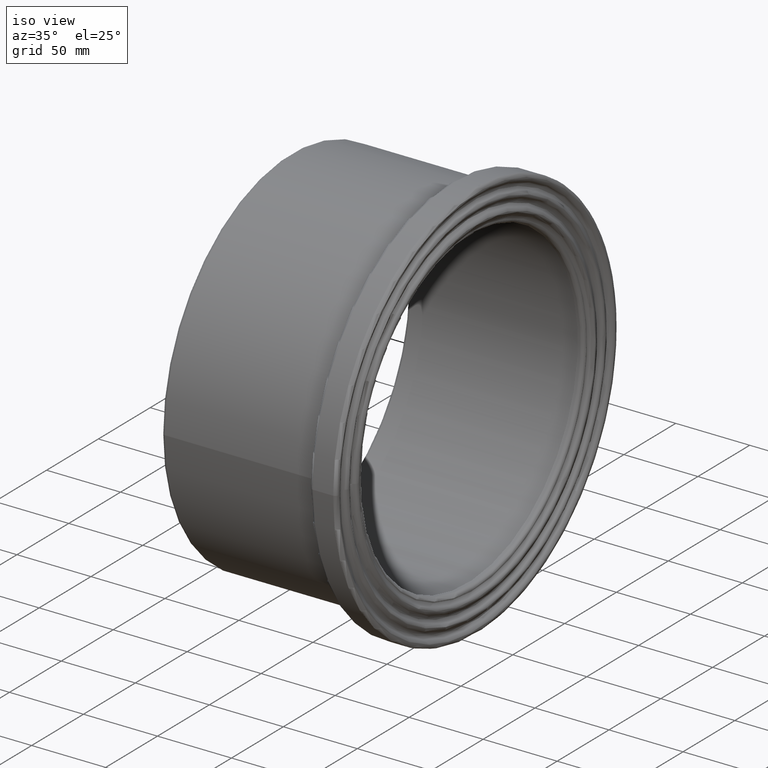
[diagram: clean part render]
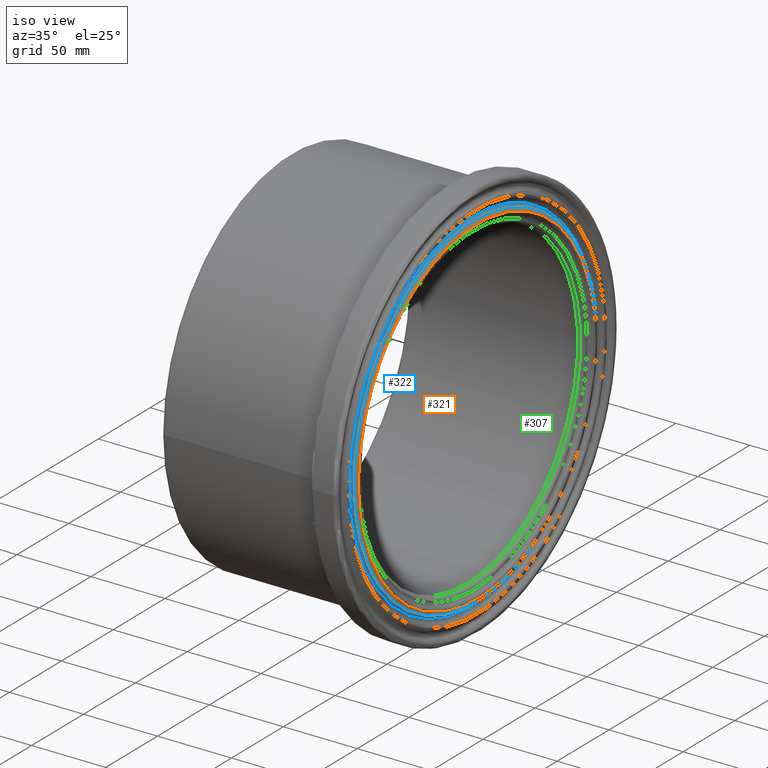
[diagram: same view with three faces highlighted in distinct colors, each labeled with its STEP entity id]
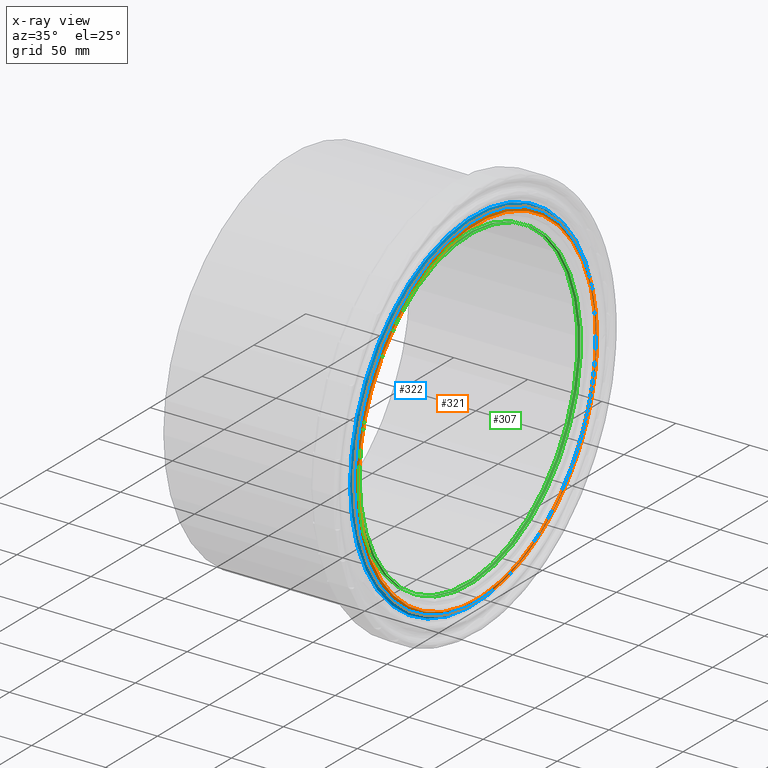
[diagram: x-ray of the same camera — body ghosted, the three highlighted faces saturated]
A machine part, iso view with three faces highlighted in distinct colors.
The next image is the same camera in x-ray (body ghosted, the three faces saturated) — at least one of them is partly hidden behind the body in this view.
Their STEP definitions:

[orange] entity #321 — the highlighted face is a freeform B-spline surface patch.
#18=B_SPLINE_SURFACE_WITH_KNOTS('',3,3,((#1747,#1748,#1749,#1750,#1751,
#1752,#1753,#1754,#1755,#1756,#1757,#1758,#1759,#1760,#1761,#1762,#1763,
#1764,#1765,#1766,#1767,#1768,#1769,#1770,#1771,#1772,#1773,#1774,#1775,
#1776,#1777,#1778,#1779,#1780,#1781,#1782,#1783,#1784,#1785,#1786,#1787,
#1788,#1789,#1790,#1791,#1792,#1793,#1794,#1795,#1796,#1797,#1798,#1799,
#1800,#1801),(#1802,#1803,#1804,#1805,#1806,#1807,#1808,#1809,#1810,#1811,
#1812,#1813,#1814,#1815,#1816,#1817,#1818,#1819,#1820,#1821,#1822,#1823,
#1824,#1825,#1826,#1827,#1828,#1829,#1830,#1831,#1832,#1833,#1834,#1835,
#1836,#1837,#1838,#1839,#1840,#1841,#1842,#1843,#1844,#1845,#1846,#1847,
#1848,#1849,#1850,#1851,#1852,#1853,#1854,#1855,#1856),(#1857,#1858,#1859,
#1860,#1861,#1862,#1863,#1864,#1865,#1866,#1867,#1868,#1869,#1870,#1871,
#1872,#1873,#1874,#1875,#1876,#1877,#1878,#1879,#1880,#1881,#1882,#1883,
#1884,#1885,#1886,#1887,#1888,#1889,#1890,#1891,#1892,#1893,#1894,#1895,
#1896,#1897,#1898,#1899,#1900,#1901,#1902,#1903,#1904,#1905,#1906,#1907,
#1908,#1909,#1910,#1911),(#1912,#1913,#1914,#1915,#1916,#1917,#1918,#1919,
#1920,#1921,#1922,#1923,#1924,#1925,#1926,#1927,#1928,#1929,#1930,#1931,
#1932,#1933,#1934,#1935,#1936,#1937,#1938,#1939,#1940,#1941,#1942,#1943,
#1944,#1945,#1946,#1947,#1948,#1949,#1950,#1951,#1952,#1953,#1954,#1955,
#1956,#1957,#1958,#1959,#1960,#1961,#1962,#1963,#1964,#1965,#1966),(#1967,
#1968,#1969,#1970,#1971,#1972,#1973,#1974,#1975,#1976,#1977,#1978,#1979,
#1980,#1981,#1982,#1983,#1984,#1985,#1986,#1987,#1988,#1989,#1990,#1991,
#1992,#1993,#1994,#1995,#1996,#1997,#1998,#1999,#2000,#2001,#2002,#2003,
#2004,#2005,#2006,#2007,#2008,#2009,#2010,#2011,#2012,#2013,#2014,#2015,
#2016,#2017,#2018,#2019,#2020,#2021)),.UNSPECIFIED.,.F.,.T.,.F.,(4,1,4),
(4,1,1,1,1,1,1,1,1,1,1,1,1,1,1,1,1,1,1,1,1,1,1,1,1,1,1,1,1,1,1,1,1,1,1,
1,1,1,1,1,1,1,1,1,1,1,1,1,1,1,1,1,4),(0.,0.571428571428571,1.),(35.8204599117917,
37.0997620514985,38.3790641912054,39.6583663309122,40.9376684706191,43.4962727500327,
44.7755748897396,46.0548770294464,48.3291919444808,49.466349401998,52.8778217745496,
53.7306898676875,54.5835579608254,56.2892941471012,57.995030333377,59.7007665196528,
61.4065027059286,63.1122388922044,64.8179750784802,66.523711264756,69.9351836373075,
72.0673538701523,72.4937879167212,73.3466560098591,75.0523921961349,76.7581283824107,
77.8242134988331,78.4638645686865,80.1696007549623,81.8753369412381,82.9414220576605,
83.5810731275139,85.2868093137897,86.9925455000655,88.2718476397723,89.5511497794792,
90.5106263842593,92.1097540588929,93.3890561985997,94.6683583383065,95.6278349430867,
96.5873115478668,97.2269626177202,98.5062647574271,98.9860030598172,99.7855668971339,
102.344171176548,102.663996711474,103.623473316254,104.902775455961,106.182077595668,
106.501903130595,107.461379735375),.UNSPECIFIED.);
#26=B_SPLINE_CURVE_WITH_KNOTS('',3,(#899,#900,#901,#902,#903,#904,#905,
#906,#907,#908,#909,#910,#911,#912,#913,#914,#915,#916,#917,#918,#919,#920,
#921,#922,#923,#924,#925,#926,#927,#928,#929,#930,#931,#932,#933,#934,#935,
#936,#937,#938,#939,#940,#941,#942,#943,#944,#945,#946,#947,#948,#949,#950,
#951,#952,#953),.UNSPECIFIED.,.T.,.F.,(4,1,1,1,1,1,1,1,1,1,1,1,1,1,1,1,
1,1,1,1,1,1,1,1,1,1,1,1,1,1,1,1,1,1,1,1,1,1,1,1,1,1,1,1,1,1,1,1,1,1,1,1,
4),(35.8204599117917,37.0997620514985,38.3790641912054,39.6583663309122,
40.9376684706191,43.4962727500327,44.7755748897396,46.0548770294464,48.3291919444808,
49.466349401998,52.8778217745496,53.7306898676875,54.5835579608254,56.2892941471012,
57.995030333377,59.7007665196528,61.4065027059286,63.1122388922044,64.8179750784802,
66.523711264756,69.9351836373075,72.0673538701523,72.4937879167212,73.3466560098591,
75.0523921961349,76.7581283824107,77.8242134988331,78.4638645686865,80.1696007549623,
81.8753369412381,82.9414220576605,83.5810731275139,85.2868093137897,86.9925455000655,
88.2718476397723,89.5511497794792,90.5106263842593,92.1097540588929,93.3890561985997,
94.6683583383065,95.6278349430867,96.5873115478668,97.2269626177202,98.5062647574271,
98.9860030598172,99.7855668971339,102.344171176548,102.663996711474,103.623473316254,
104.902775455961,106.182077595668,106.501903130595,107.461379735375),
 .UNSPECIFIED.);
#31=B_SPLINE_CURVE_WITH_KNOTS('',3,(#2024,#2025,#2026,#2027,#2028,#2029,
#2030,#2031,#2032,#2033,#2034,#2035,#2036,#2037,#2038,#2039,#2040,#2041,
#2042,#2043,#2044,#2045,#2046,#2047,#2048,#2049,#2050,#2051,#2052,#2053,
#2054,#2055,#2056,#2057,#2058,#2059,#2060,#2061,#2062,#2063,#2064,#2065,
#2066,#2067,#2068,#2069,#2070,#2071,#2072,#2073,#2074,#2075,#2076,#2077,
#2078),.UNSPECIFIED.,.T.,.F.,(4,1,1,1,1,1,1,1,1,1,1,1,1,1,1,1,1,1,1,1,1,
1,1,1,1,1,1,1,1,1,1,1,1,1,1,1,1,1,1,1,1,1,1,1,1,1,1,1,1,1,1,1,4),(-107.461379735375,
-106.501903130595,-106.182077595668,-104.902775455961,-103.623473316254,
-102.663996711474,-102.344171176548,-99.7855668971339,-98.9860030598172,
-98.5062647574271,-97.2269626177202,-96.5873115478668,-95.6278349430867,
-94.6683583383065,-93.3890561985997,-92.1097540588929,-90.5106263842593,
-89.5511497794792,-88.2718476397723,-86.9925455000655,-85.2868093137897,
-83.5810731275139,-82.9414220576605,-81.8753369412381,-80.1696007549623,
-78.4638645686865,-77.8242134988331,-76.7581283824107,-75.0523921961349,
-73.3466560098591,-72.4937879167212,-72.0673538701523,-69.9351836373075,
-66.523711264756,-64.8179750784802,-63.1122388922044,-61.4065027059286,
-59.7007665196528,-57.995030333377,-56.2892941471012,-54.5835579608254,
-53.7306898676875,-52.8778217745496,-49.466349401998,-48.3291919444808,
-46.0548770294464,-44.7755748897396,-43.4962727500327,-40.9376684706191,
-39.6583663309122,-38.3790641912054,-37.0997620514985,-35.8204599117917),
 .UNSPECIFIED.);
#82=FACE_OUTER_BOUND('',#123,.T.);
#123=EDGE_LOOP('',(#267,#268,#269,#270));
#160=CIRCLE('',#363,2.25000000000001);
#174=VERTEX_POINT('',#898);
#187=VERTEX_POINT('',#2022);
#203=EDGE_CURVE('',#174,#174,#26,.T.);
#218=EDGE_CURVE('',#187,#174,#160,.T.);
#219=EDGE_CURVE('',#187,#187,#31,.T.);
#267=ORIENTED_EDGE('',*,*,#218,.T.);
#268=ORIENTED_EDGE('',*,*,#203,.T.);
#269=ORIENTED_EDGE('',*,*,#218,.F.);
#270=ORIENTED_EDGE('',*,*,#219,.T.);
#321=ADVANCED_FACE('',(#82),#18,.F.);
#363=AXIS2_PLACEMENT_3D('',#2023,#439,#440);
#439=DIRECTION('center_axis',(0.,0.000811828910620919,0.999999670466856));
#440=DIRECTION('ref_axis',(0.399999999999998,-0.916514836969053,0.000744053486854781));
#898=CARTESIAN_POINT('',(126.,-114.708977407451,0.0931240948548254));
#899=CARTESIAN_POINT('Ctrl Pts',(126.,-114.70902554783,0.0941337325583575));
#900=CARTESIAN_POINT('Ctrl Pts',(126.,-114.705169819851,4.36857997602854));
#901=CARTESIAN_POINT('Ctrl Pts',(126.,-114.219579128766,12.950924190981));
#902=CARTESIAN_POINT('Ctrl Pts',(126.,-112.037938760598,25.7270397770054));
#903=CARTESIAN_POINT('Ctrl Pts',(126.,-108.446261560288,38.0999906587147));
#904=CARTESIAN_POINT('Ctrl Pts',(126.,-101.902748903044,53.8916647343686));
#905=CARTESIAN_POINT('Ctrl Pts',(126.,-92.6133844621335,68.6404699549778));
#906=CARTESIAN_POINT('Ctrl Pts',(126.,-81.2019843370784,81.3495332877505));
#907=CARTESIAN_POINT('Ctrl Pts',(126.,-69.0901190759371,92.1825427027903));
#908=CARTESIAN_POINT('Ctrl Pts',(126.,-55.713115354848,100.769263484758));
#909=CARTESIAN_POINT('Ctrl Pts',(126.,-34.9568408850502,110.117259250099));
#910=CARTESIAN_POINT('Ctrl Pts',(126.,-16.9183079726668,114.224308633411));
#911=CARTESIAN_POINT('Ctrl Pts',(126.,0.135160233092863,114.806912599968));
#912=CARTESIAN_POINT('Ctrl Pts',(126.,11.5692142662855,114.384064177018));
#913=CARTESIAN_POINT('Ctrl Pts',(126.,25.8491759191441,112.196413593276));
#914=CARTESIAN_POINT('Ctrl Pts',(126.,42.2018207986736,107.120163309706));
#915=CARTESIAN_POINT('Ctrl Pts',(126.,57.7090424718399,99.6393323683102));
#916=CARTESIAN_POINT('Ctrl Pts',(126.,71.9817263032606,89.8565586034282));
#917=CARTESIAN_POINT('Ctrl Pts',(126.,84.4837519484442,78.2262153361427));
#918=CARTESIAN_POINT('Ctrl Pts',(126.,95.2695410419925,64.6632533851454));
#919=CARTESIAN_POINT('Ctrl Pts',(126.000000000001,106.679114884556,44.7966175940771));
#920=CARTESIAN_POINT('Ctrl Pts',(125.999999999999,113.857603573383,21.4264230222722));
#921=CARTESIAN_POINT('Ctrl Pts',(126.,114.974856540011,1.41120614106773));
#922=CARTESIAN_POINT('Ctrl Pts',(126.,114.33642576819,-9.96631457756331));
#923=CARTESIAN_POINT('Ctrl Pts',(126.,113.220150054534,-19.9491097429717));
#924=CARTESIAN_POINT('Ctrl Pts',(126.,109.999806624249,-34.0057220687705));
#925=CARTESIAN_POINT('Ctrl Pts',(126.,104.525766374452,-47.9366329566771));
#926=CARTESIAN_POINT('Ctrl Pts',(126.,99.0807755245501,-58.0225193730192));
#927=CARTESIAN_POINT('Ctrl Pts',(126.,92.8661504965458,-67.7051197990052));
#928=CARTESIAN_POINT('Ctrl Pts',(126.,84.3640249353987,-78.3512488405187));
#929=CARTESIAN_POINT('Ctrl Pts',(126.,73.3780304705528,-88.5408602292782));
#930=CARTESIAN_POINT('Ctrl Pts',(126.,64.0570852224167,-95.2927516549401));
#931=CARTESIAN_POINT('Ctrl Pts',(126.,54.2603428377721,-101.30737490193));
#932=CARTESIAN_POINT('Ctrl Pts',(126.,42.0527864602654,-107.180158036771));
#933=CARTESIAN_POINT('Ctrl Pts',(126.,26.9741717660856,-111.835810053985));
#934=CARTESIAN_POINT('Ctrl Pts',(126.,12.7663191031139,-114.239863013117));
#935=CARTESIAN_POINT('Ctrl Pts',(126.,1.02453363825831,-114.887283092248));
#936=CARTESIAN_POINT('Ctrl Pts',(126.,-11.8116259706175,-114.347217971288));
#937=CARTESIAN_POINT('Ctrl Pts',(126.,-24.6322918252817,-112.350944898414));
#938=CARTESIAN_POINT('Ctrl Pts',(126.,-38.0613595230423,-108.462554908556));
#939=CARTESIAN_POINT('Ctrl Pts',(126.,-48.9013249933185,-103.967363123064));
#940=CARTESIAN_POINT('Ctrl Pts',(126.,-58.4038919527199,-98.8868706426386));
#941=CARTESIAN_POINT('Ctrl Pts',(126.,-65.6281418273154,-94.1974385964051));
#942=CARTESIAN_POINT('Ctrl Pts',(126.,-73.3653246853013,-88.3623227267138));
#943=CARTESIAN_POINT('Ctrl Pts',(126.,-79.3368215338677,-83.0153051211525));
#944=CARTESIAN_POINT('Ctrl Pts',(126.,-85.2515784643016,-76.8389556599477));
#945=CARTESIAN_POINT('Ctrl Pts',(126.,-93.6435879000368,-67.0413751461699));
#946=CARTESIAN_POINT('Ctrl Pts',(126.,-100.273474628275,-56.4566400709393));
#947=CARTESIAN_POINT('Ctrl Pts',(126.,-105.653753648645,-44.833523766619));
#948=CARTESIAN_POINT('Ctrl Pts',(126.,-108.814894935797,-36.8816689456884));
#949=CARTESIAN_POINT('Ctrl Pts',(126.,-112.093061292018,-25.4785557509338));
#950=CARTESIAN_POINT('Ctrl Pts',(126.,-113.706210856747,-15.9157952341741));
#951=CARTESIAN_POINT('Ctrl Pts',(126.,-114.53656835862,-7.37360279550994));
#952=CARTESIAN_POINT('Ctrl Pts',(126.,-114.711917343814,-3.11170095004429));
#953=CARTESIAN_POINT('Ctrl Pts',(126.,-114.70902554783,0.0941337325583575));
#1747=CARTESIAN_POINT('Ctrl Pts',(126.,-114.70902554783,0.0941337325583575));
#1748=CARTESIAN_POINT('Ctrl Pts',(126.,-114.705169819851,4.36857997602854));
#1749=CARTESIAN_POINT('Ctrl Pts',(126.,-114.219579128766,12.950924190981));
#1750=CARTESIAN_POINT('Ctrl Pts',(126.,-112.037938760598,25.7270397770054));
#1751=CARTESIAN_POINT('Ctrl Pts',(126.,-108.446261560288,38.0999906587147));
#1752=CARTESIAN_POINT('Ctrl Pts',(126.,-101.902748903044,53.8916647343686));
#1753=CARTESIAN_POINT('Ctrl Pts',(126.,-92.6133844621335,68.6404699549778));
#1754=CARTESIAN_POINT('Ctrl Pts',(126.,-81.2019843370784,81.3495332877505));
#1755=CARTESIAN_POINT('Ctrl Pts',(126.,-69.0901190759371,92.1825427027903));
#1756=CARTESIAN_POINT('Ctrl Pts',(126.,-55.713115354848,100.769263484758));
#1757=CARTESIAN_POINT('Ctrl Pts',(126.,-34.9568408850502,110.117259250099));
#1758=CARTESIAN_POINT('Ctrl Pts',(126.,-16.9183079726668,114.224308633411));
#1759=CARTESIAN_POINT('Ctrl Pts',(126.,0.135160233092863,114.806912599968));
#1760=CARTESIAN_POINT('Ctrl Pts',(126.,11.5692142662855,114.384064177018));
#1761=CARTESIAN_POINT('Ctrl Pts',(126.,25.8491759191441,112.196413593276));
#1762=CARTESIAN_POINT('Ctrl Pts',(126.,42.2018207986736,107.120163309706));
#1763=CARTESIAN_POINT('Ctrl Pts',(126.,57.7090424718399,99.6393323683102));
#1764=CARTESIAN_POINT('Ctrl Pts',(126.,71.9817263032606,89.8565586034282));
#1765=CARTESIAN_POINT('Ctrl Pts',(126.,84.4837519484442,78.2262153361427));
#1766=CARTESIAN_POINT('Ctrl Pts',(126.,95.2695410419925,64.6632533851454));
#1767=CARTESIAN_POINT('Ctrl Pts',(126.000000000001,106.679114884556,44.7966175940771));
#1768=CARTESIAN_POINT('Ctrl Pts',(125.999999999999,113.857603573383,21.4264230222722));
#1769=CARTESIAN_POINT('Ctrl Pts',(126.,114.974856540011,1.41120614106773));
#1770=CARTESIAN_POINT('Ctrl Pts',(126.,114.33642576819,-9.96631457756331));
#1771=CARTESIAN_POINT('Ctrl Pts',(126.,113.220150054534,-19.9491097429717));
#1772=CARTESIAN_POINT('Ctrl Pts',(126.,109.999806624249,-34.0057220687705));
#1773=CARTESIAN_POINT('Ctrl Pts',(126.,104.525766374452,-47.9366329566771));
#1774=CARTESIAN_POINT('Ctrl Pts',(126.,99.0807755245501,-58.0225193730192));
#1775=CARTESIAN_POINT('Ctrl Pts',(126.,92.8661504965458,-67.7051197990052));
#1776=CARTESIAN_POINT('Ctrl Pts',(126.,84.3640249353987,-78.3512488405187));
#1777=CARTESIAN_POINT('Ctrl Pts',(126.,73.3780304705528,-88.5408602292782));
#1778=CARTESIAN_POINT('Ctrl Pts',(126.,64.0570852224167,-95.2927516549401));
#1779=CARTESIAN_POINT('Ctrl Pts',(126.,54.2603428377721,-101.30737490193));
#1780=CARTESIAN_POINT('Ctrl Pts',(126.,42.0527864602654,-107.180158036771));
#1781=CARTESIAN_POINT('Ctrl Pts',(126.,26.9741717660856,-111.835810053985));
#1782=CARTESIAN_POINT('Ctrl Pts',(126.,12.7663191031139,-114.239863013117));
#1783=CARTESIAN_POINT('Ctrl Pts',(126.,1.02453363825831,-114.887283092248));
#1784=CARTESIAN_POINT('Ctrl Pts',(126.,-11.8116259706175,-114.347217971288));
#1785=CARTESIAN_POINT('Ctrl Pts',(126.,-24.6322918252817,-112.350944898414));
#1786=CARTESIAN_POINT('Ctrl Pts',(126.,-38.0613595230423,-108.462554908556));
#1787=CARTESIAN_POINT('Ctrl Pts',(126.,-48.9013249933185,-103.967363123064));
#1788=CARTESIAN_POINT('Ctrl Pts',(126.,-58.4038919527199,-98.8868706426386));
#1789=CARTESIAN_POINT('Ctrl Pts',(126.,-65.6281418273154,-94.1974385964051));
#1790=CARTESIAN_POINT('Ctrl Pts',(126.,-73.3653246853013,-88.3623227267138));
#1791=CARTESIAN_POINT('Ctrl Pts',(126.,-79.3368215338677,-83.0153051211525));
#1792=CARTESIAN_POINT('Ctrl Pts',(126.,-85.2515784643016,-76.8389556599477));
#1793=CARTESIAN_POINT('Ctrl Pts',(126.,-93.6435879000368,-67.0413751461699));
#1794=CARTESIAN_POINT('Ctrl Pts',(126.,-100.273474628275,-56.4566400709393));
#1795=CARTESIAN_POINT('Ctrl Pts',(126.,-105.653753648645,-44.833523766619));
#1796=CARTESIAN_POINT('Ctrl Pts',(126.,-108.814894935797,-36.8816689456884));
#1797=CARTESIAN_POINT('Ctrl Pts',(126.,-112.093061292018,-25.4785557509338));
#1798=CARTESIAN_POINT('Ctrl Pts',(126.,-113.706210856747,-15.9157952341741));
#1799=CARTESIAN_POINT('Ctrl Pts',(126.,-114.53656835862,-7.37360279550994));
#1800=CARTESIAN_POINT('Ctrl Pts',(126.,-114.711917343814,-3.11170095004429));
#1801=CARTESIAN_POINT('Ctrl Pts',(126.,-114.70902554783,0.0941337325583575));
#1802=CARTESIAN_POINT('Ctrl Pts',(126.,-115.205860086923,0.0945429422157295));
#1803=CARTESIAN_POINT('Ctrl Pts',(126.,-115.201987612723,4.38750251539644));
#1804=CARTESIAN_POINT('Ctrl Pts',(126.,-114.714293128341,13.0070181048689));
#1805=CARTESIAN_POINT('Ctrl Pts',(126.,-112.523204782034,25.8384686427858));
#1806=CARTESIAN_POINT('Ctrl Pts',(126.,-108.915970739425,38.2650103880508));
#1807=CARTESIAN_POINT('Ctrl Pts',(126.,-102.344113773228,54.1250877009773));
#1808=CARTESIAN_POINT('Ctrl Pts',(126.,-93.0145202212584,68.9377649854845));
#1809=CARTESIAN_POINT('Ctrl Pts',(126.,-81.5536885473745,81.7018820843038));
#1810=CARTESIAN_POINT('Ctrl Pts',(126.,-69.3893679271997,92.5818072892312));
#1811=CARTESIAN_POINT('Ctrl Pts',(126.,-55.9544253586832,101.205720390851));
#1812=CARTESIAN_POINT('Ctrl Pts',(126.,-35.108243132639,110.594207390143));
#1813=CARTESIAN_POINT('Ctrl Pts',(126.,-16.9915906445008,114.71904225506));
#1814=CARTESIAN_POINT('Ctrl Pts',(126.,0.135747988944476,115.304171470673));
#1815=CARTESIAN_POINT('Ctrl Pts',(126.,11.6193230666654,114.879490755489));
#1816=CARTESIAN_POINT('Ctrl Pts',(126.,25.9611348731705,112.682365628274));
#1817=CARTESIAN_POINT('Ctrl Pts',(126.,42.3846080707113,107.584128138152));
#1818=CARTESIAN_POINT('Ctrl Pts',(126.,57.958995818581,100.070896021547));
#1819=CARTESIAN_POINT('Ctrl Pts',(126.,72.2934981394913,90.2457496443451));
#1820=CARTESIAN_POINT('Ctrl Pts',(126.,84.8496707304022,78.5650362316471));
#1821=CARTESIAN_POINT('Ctrl Pts',(126.,95.6821792943542,64.943324547105));
#1822=CARTESIAN_POINT('Ctrl Pts',(126.000000000001,107.141169837559,44.9906433962343));
#1823=CARTESIAN_POINT('Ctrl Pts',(125.999999999999,114.35074969623,21.5192272728708));
#1824=CARTESIAN_POINT('Ctrl Pts',(126.,115.47284269857,1.41731855624939));
#1825=CARTESIAN_POINT('Ctrl Pts',(126.,114.831645938496,-10.0094840453081));
#1826=CARTESIAN_POINT('Ctrl Pts',(126.,113.710536851001,-20.0355098280799));
#1827=CARTESIAN_POINT('Ctrl Pts',(126.,110.476243014102,-34.1530130608025));
#1828=CARTESIAN_POINT('Ctrl Pts',(126.,104.978495278504,-48.1442576392524));
#1829=CARTESIAN_POINT('Ctrl Pts',(126.,99.5099202742264,-58.2738286035981));
#1830=CARTESIAN_POINT('Ctrl Pts',(126.,93.2683773329648,-67.9983703009928));
#1831=CARTESIAN_POINT('Ctrl Pts',(126.,84.7294261677844,-78.690607748963));
#1832=CARTESIAN_POINT('Ctrl Pts',(126.,73.695853370224,-88.924351559131));
#1833=CARTESIAN_POINT('Ctrl Pts',(126.,64.3345302299293,-95.7054906342631));
#1834=CARTESIAN_POINT('Ctrl Pts',(126.,54.4953610382032,-101.746162174261));
#1835=CARTESIAN_POINT('Ctrl Pts',(126.,42.2349260684978,-107.644383775148));
#1836=CARTESIAN_POINT('Ctrl Pts',(126.,27.0910022161584,-112.320200151458));
#1837=CARTESIAN_POINT('Ctrl Pts',(126.,12.8216148704769,-114.734665126319));
#1838=CARTESIAN_POINT('Ctrl Pts',(126.,1.02897214607738,-115.384889742421));
#1839=CARTESIAN_POINT('Ctrl Pts',(126.,-11.8627881773056,-114.842484962282));
#1840=CARTESIAN_POINT('Ctrl Pts',(126.,-24.7389815617241,-112.837565593267));
#1841=CARTESIAN_POINT('Ctrl Pts',(126.,-38.2262071166241,-108.932336167549));
#1842=CARTESIAN_POINT('Ctrl Pts',(126.,-49.1131347484908,-104.417670769436));
#1843=CARTESIAN_POINT('Ctrl Pts',(126.,-58.6568520996567,-99.3151756862217));
#1844=CARTESIAN_POINT('Ctrl Pts',(126.,-65.9123939793347,-94.6054329267025));
#1845=CARTESIAN_POINT('Ctrl Pts',(126.,-73.6830898095022,-88.7450414646656));
#1846=CARTESIAN_POINT('Ctrl Pts',(126.,-79.6804466359776,-83.3748690167018));
#1847=CARTESIAN_POINT('Ctrl Pts',(126.,-85.6208274341535,-77.1717627418123));
#1848=CARTESIAN_POINT('Ctrl Pts',(126.,-94.0491879062323,-67.3317394661189));
#1849=CARTESIAN_POINT('Ctrl Pts',(126.,-100.707779012138,-56.70117998073));
#1850=CARTESIAN_POINT('Ctrl Pts',(126.,-106.111368478746,-45.027706624286));
#1851=CARTESIAN_POINT('Ctrl Pts',(126.,-109.286200271474,-37.0414141833592));
#1852=CARTESIAN_POINT('Ctrl Pts',(126.,-112.578565502861,-25.5889071547476));
#1853=CARTESIAN_POINT('Ctrl Pts',(126.,-114.198701410928,-15.9847354949228));
#1854=CARTESIAN_POINT('Ctrl Pts',(126.,-115.03265584078,-7.40553764468388));
#1855=CARTESIAN_POINT('Ctrl Pts',(126.,-115.208764442573,-3.12517673766981));
#1856=CARTESIAN_POINT('Ctrl Pts',(126.,-115.205860086923,0.0945429422157295));
#1857=CARTESIAN_POINT('Ctrl Pts',(125.700792944948,-116.072433538845,0.0952522173655182));
#1858=CARTESIAN_POINT('Ctrl Pts',(125.700792944948,-116.068531993879,4.42050375411311));
#1859=CARTESIAN_POINT('Ctrl Pts',(125.700792944949,-115.577169813419,13.1048561988516));
#1860=CARTESIAN_POINT('Ctrl Pts',(125.700792944948,-113.369598599525,26.0328265042787));
#1861=CARTESIAN_POINT('Ctrl Pts',(125.700792944949,-109.735231547772,38.552839646671));
#1862=CARTESIAN_POINT('Ctrl Pts',(125.700792944948,-103.113944697194,54.5322089895583));
#1863=CARTESIAN_POINT('Ctrl Pts',(125.700792944949,-93.7141674018207,69.4563176773359));
#1864=CARTESIAN_POINT('Ctrl Pts',(125.700792944948,-82.1671351513759,82.3164364734043));
#1865=CARTESIAN_POINT('Ctrl Pts',(125.700792944948,-69.9113096821504,93.2782060047702));
#1866=CARTESIAN_POINT('Ctrl Pts',(125.700792944949,-56.3753095285373,101.966986542962));
#1867=CARTESIAN_POINT('Ctrl Pts',(125.700792944948,-35.3723319508216,111.426090018269));
#1868=CARTESIAN_POINT('Ctrl Pts',(125.700792944949,-17.1193942562462,115.581955745596));
#1869=CARTESIAN_POINT('Ctrl Pts',(125.700792944948,0.136766140060776,116.171483967942));
#1870=CARTESIAN_POINT('Ctrl Pts',(125.700792944948,11.7067236939122,115.743609859763));
#1871=CARTESIAN_POINT('Ctrl Pts',(125.700792944948,26.1564140629407,113.529957126219));
#1872=CARTESIAN_POINT('Ctrl Pts',(125.700792944948,42.7034229401367,108.393371732108));
#1873=CARTESIAN_POINT('Ctrl Pts',(125.700792944949,58.3949602066951,100.823625105489));
#1874=CARTESIAN_POINT('Ctrl Pts',(125.700792944948,72.8372862867583,90.9245755130637));
#1875=CARTESIAN_POINT('Ctrl Pts',(125.700792944948,85.4879090852902,79.1559954043642));
#1876=CARTESIAN_POINT('Ctrl Pts',(125.700792944948,96.4018950126052,65.4318281096307));
#1877=CARTESIAN_POINT('Ctrl Pts',(125.700792944948,107.947080991763,45.3290610104106));
#1878=CARTESIAN_POINT('Ctrl Pts',(125.700792944949,115.21089190722,21.6810928873921));
#1879=CARTESIAN_POINT('Ctrl Pts',(125.700792944948,116.341424085208,1.42797941974245));
#1880=CARTESIAN_POINT('Ctrl Pts',(125.700792944948,115.695405248851,-10.0847714649853));
#1881=CARTESIAN_POINT('Ctrl Pts',(125.700792944949,114.565861337755,-20.1862219363983));
#1882=CARTESIAN_POINT('Ctrl Pts',(125.700792944948,111.307242125447,-34.4099062790609));
#1883=CARTESIAN_POINT('Ctrl Pts',(125.700792944948,105.768138058261,-48.5063982846236));
#1884=CARTESIAN_POINT('Ctrl Pts',(125.700792944948,100.258429282536,-58.7121634921806));
#1885=CARTESIAN_POINT('Ctrl Pts',(125.700792944949,93.9699386822121,-68.5098484779943));
#1886=CARTESIAN_POINT('Ctrl Pts',(125.700792944948,85.3667587691118,-79.2825159078545));
#1887=CARTESIAN_POINT('Ctrl Pts',(125.700792944948,74.2501858203651,-89.593239284905));
#1888=CARTESIAN_POINT('Ctrl Pts',(125.700792944949,64.81845532534,-96.4253814536675));
#1889=CARTESIAN_POINT('Ctrl Pts',(125.700792944948,54.9052695232567,-102.511493924933));
#1890=CARTESIAN_POINT('Ctrl Pts',(125.700792944949,42.5526177443253,-108.454079282427));
#1891=CARTESIAN_POINT('Ctrl Pts',(125.700792944948,27.294781665618,-113.165067544445));
#1892=CARTESIAN_POINT('Ctrl Pts',(125.700792944949,12.9180565796018,-115.597694723766));
#1893=CARTESIAN_POINT('Ctrl Pts',(125.700792944948,1.03671079092592,-116.252809808156));
#1894=CARTESIAN_POINT('Ctrl Pts',(125.700792944949,-11.9520157977647,-115.706325706834));
#1895=CARTESIAN_POINT('Ctrl Pts',(125.700792944948,-24.9250659815238,-113.686325321077));
#1896=CARTESIAN_POINT('Ctrl Pts',(125.700792944949,-38.5137505413535,-109.751718181746));
#1897=CARTESIAN_POINT('Ctrl Pts',(125.700792944949,-49.4825547840229,-105.203098400909));
#1898=CARTESIAN_POINT('Ctrl Pts',(125.700792944948,-59.0980692129186,-100.062219650688));
#1899=CARTESIAN_POINT('Ctrl Pts',(125.700792944949,-66.4081845705687,-95.3170498680684));
#1900=CARTESIAN_POINT('Ctrl Pts',(125.700792944948,-74.2373296960829,-89.4125795487243));
#1901=CARTESIAN_POINT('Ctrl Pts',(125.700792944948,-80.2798035546312,-84.0020072779559));
#1902=CARTESIAN_POINT('Ctrl Pts',(125.700792944948,-86.2648607076493,-77.7522483393077));
#1903=CARTESIAN_POINT('Ctrl Pts',(125.700792944948,-94.75661508981,-67.8382174981229));
#1904=CARTESIAN_POINT('Ctrl Pts',(125.700792944948,-101.465306112467,-57.1276692728808));
#1905=CARTESIAN_POINT('Ctrl Pts',(125.700792944949,-106.909532278846,-45.3664065341914));
#1906=CARTESIAN_POINT('Ctrl Pts',(125.700792944948,-110.108246545493,-37.3200366229534));
#1907=CARTESIAN_POINT('Ctrl Pts',(125.700792944949,-113.425376444878,-25.7813893483669));
#1908=CARTESIAN_POINT('Ctrl Pts',(125.700792944948,-115.057699730001,-16.1049659230739));
#1909=CARTESIAN_POINT('Ctrl Pts',(125.700792944949,-115.897926583587,-7.46124445772653));
#1910=CARTESIAN_POINT('Ctrl Pts',(125.700792944948,-116.075359697569,-3.14868643519518));
#1911=CARTESIAN_POINT('Ctrl Pts',(125.700792944948,-116.072433538845,0.0952522173655182));
#1912=CARTESIAN_POINT('Ctrl Pts',(124.991516955345,-116.622134892688,0.0957048258520873));
#1913=CARTESIAN_POINT('Ctrl Pts',(124.991516955345,-116.618214824028,4.44143968462912));
#1914=CARTESIAN_POINT('Ctrl Pts',(124.991516955346,-116.124525046765,13.1669189039709));
#1915=CARTESIAN_POINT('Ctrl Pts',(124.991516955346,-113.906500398199,26.1561123692168));
#1916=CARTESIAN_POINT('Ctrl Pts',(124.991516955346,-110.254921177239,38.7354187944491));
#1917=CARTESIAN_POINT('Ctrl Pts',(124.991516955346,-103.602274233418,54.7904694559137));
#1918=CARTESIAN_POINT('Ctrl Pts',(124.991516955346,-94.1579866220101,69.7852475137263));
#1919=CARTESIAN_POINT('Ctrl Pts',(124.991516955346,-82.5562635072816,82.7062774719051));
#1920=CARTESIAN_POINT('Ctrl Pts',(124.991516955346,-70.2424006343145,93.7199554368619));
#1921=CARTESIAN_POINT('Ctrl Pts',(124.991516955346,-56.6422964767508,102.449885731454));
#1922=CARTESIAN_POINT('Ctrl Pts',(124.991516955346,-35.5398449733655,111.953788748123));
#1923=CARTESIAN_POINT('Ctrl Pts',(124.991516955345,-17.2004742466102,116.129332772236));
#1924=CARTESIAN_POINT('Ctrl Pts',(124.991516955346,0.137416211309863,116.721654770863));
#1925=CARTESIAN_POINT('Ctrl Pts',(124.991516955345,11.7621644808247,116.291753480963));
#1926=CARTESIAN_POINT('Ctrl Pts',(124.991516955346,26.2802863166237,114.067617972182));
#1927=CARTESIAN_POINT('Ctrl Pts',(124.991516955346,42.905660086361,108.906705835316));
#1928=CARTESIAN_POINT('Ctrl Pts',(124.991516955346,58.6715103606864,101.301110288847));
#1929=CARTESIAN_POINT('Ctrl Pts',(124.991516955345,73.1822328877789,91.355179414596));
#1930=CARTESIAN_POINT('Ctrl Pts',(124.991516955346,85.892764509671,79.5308690346785));
#1931=CARTESIAN_POINT('Ctrl Pts',(124.991516955345,96.8584408691633,65.7417010921621));
#1932=CARTESIAN_POINT('Ctrl Pts',(124.991516955346,108.458301954344,45.5437325682989));
#1933=CARTESIAN_POINT('Ctrl Pts',(124.991516955346,115.756512436773,21.783772103788));
#1934=CARTESIAN_POINT('Ctrl Pts',(124.991516955346,116.892399576384,1.43474222929143));
#1935=CARTESIAN_POINT('Ctrl Pts',(124.991516955346,116.243320505685,-10.1325342107285));
#1936=CARTESIAN_POINT('Ctrl Pts',(124.991516955345,115.108428769175,-20.2818160721921));
#1937=CARTESIAN_POINT('Ctrl Pts',(124.991516955346,111.834374943945,-34.5728697784087));
#1938=CARTESIAN_POINT('Ctrl Pts',(124.991516955346,106.269040548428,-48.7361158723083));
#1939=CARTESIAN_POINT('Ctrl Pts',(124.991516955345,100.733238139482,-58.9902139860863));
#1940=CARTESIAN_POINT('Ctrl Pts',(124.991516955346,94.4149654372439,-68.834302770163));
#1941=CARTESIAN_POINT('Ctrl Pts',(124.991516955346,85.7710414744726,-79.6579851413591));
#1942=CARTESIAN_POINT('Ctrl Pts',(124.991516955346,74.6018270426731,-90.0175370888828));
#1943=CARTESIAN_POINT('Ctrl Pts',(124.991516955346,65.1254227773956,-96.8820387363666));
#1944=CARTESIAN_POINT('Ctrl Pts',(124.991516955346,55.165295123061,-102.996971479845));
#1945=CARTESIAN_POINT('Ctrl Pts',(124.991516955346,42.7541385189006,-108.967701956208));
#1946=CARTESIAN_POINT('Ctrl Pts',(124.991516955345,27.4240438893171,-113.701000258116));
#1947=CARTESIAN_POINT('Ctrl Pts',(124.991516955346,12.9792360719094,-116.145147421676));
#1948=CARTESIAN_POINT('Ctrl Pts',(124.991516955346,1.04162149302566,-116.803365428289));
#1949=CARTESIAN_POINT('Ctrl Pts',(124.991516955346,-12.0086217471824,-116.254292758998));
#1950=CARTESIAN_POINT('Ctrl Pts',(124.991516955346,-25.0431081970867,-114.224726040446));
#1951=CARTESIAN_POINT('Ctrl Pts',(124.991516955346,-38.6961397017062,-110.27148741518));
#1952=CARTESIAN_POINT('Ctrl Pts',(124.991516955346,-49.7169021156467,-105.701322251575));
#1953=CARTESIAN_POINT('Ctrl Pts',(124.991516955346,-59.3779463803017,-100.536099436575));
#1954=CARTESIAN_POINT('Ctrl Pts',(124.991516955346,-66.7226832564006,-95.7684576909823));
#1955=CARTESIAN_POINT('Ctrl Pts',(124.991516955345,-74.588907260071,-89.8360224837764));
#1956=CARTESIAN_POINT('Ctrl Pts',(124.991516955346,-80.6599931847296,-84.3998310943571));
#1957=CARTESIAN_POINT('Ctrl Pts',(124.991516955346,-86.6734002385953,-78.1204687475735));
#1958=CARTESIAN_POINT('Ctrl Pts',(124.991516955346,-95.2053733760822,-68.159479591561));
#1959=CARTESIAN_POINT('Ctrl Pts',(124.991516955346,-101.945824230196,-57.3982288946031));
#1960=CARTESIAN_POINT('Ctrl Pts',(124.991516955346,-107.415840562234,-45.5812521292723));
#1961=CARTESIAN_POINT('Ctrl Pts',(124.991516955346,-110.629702221516,-37.4967798053524));
#1962=CARTESIAN_POINT('Ctrl Pts',(124.991516955345,-113.962541832171,-25.9034832186722));
#1963=CARTESIAN_POINT('Ctrl Pts',(124.991516955346,-115.602594918885,-16.1812414640916));
#1964=CARTESIAN_POINT('Ctrl Pts',(124.991516955346,-116.446801397862,-7.49657761383735));
#1965=CARTESIAN_POINT('Ctrl Pts',(124.991516955345,-116.625074944182,-3.1635963182307));
#1966=CARTESIAN_POINT('Ctrl Pts',(124.991516955345,-116.622134892688,0.0957048258520873));
#1967=CARTESIAN_POINT('Ctrl Pts',(124.65,-116.771184796444,0.0958260034696816));
#1968=CARTESIAN_POINT('Ctrl Pts',(124.65,-116.767259752864,4.4471152748671));
#1969=CARTESIAN_POINT('Ctrl Pts',(124.65,-116.272939449355,13.1837469176235));
#1970=CARTESIAN_POINT('Ctrl Pts',(124.65,-114.052079064793,26.1895426425145));
#1971=CARTESIAN_POINT('Ctrl Pts',(124.65,-110.395833184545,38.7849258478489));
#1972=CARTESIAN_POINT('Ctrl Pts',(124.65,-103.734685798211,54.8604916799768));
#1973=CARTESIAN_POINT('Ctrl Pts',(124.65,-94.2783236105744,69.8744406845776));
#1974=CARTESIAN_POINT('Ctrl Pts',(124.65,-82.6617772540425,82.8119787373448));
#1975=CARTESIAN_POINT('Ctrl Pts',(124.65,-70.3321732853587,93.8397364771032));
#1976=CARTESIAN_POINT('Ctrl Pts',(124.65,-56.7146870755512,102.58082336576));
#1977=CARTESIAN_POINT('Ctrl Pts',(124.65,-35.5852707090261,112.096870911084));
#1978=CARTESIAN_POINT('Ctrl Pts',(124.65,-17.2224535714122,116.277753977752));
#1979=CARTESIAN_POINT('Ctrl Pts',(124.65,0.137590049956727,116.870831594068));
#1980=CARTESIAN_POINT('Ctrl Pts',(124.65,11.7771975708641,116.440381495645));
#1981=CARTESIAN_POINT('Ctrl Pts',(124.65,26.3138744634492,114.213402848026));
#1982=CARTESIAN_POINT('Ctrl Pts',(124.65,42.9604958432286,109.04589525998));
#1983=CARTESIAN_POINT('Ctrl Pts',(124.65,58.7464955849987,101.430579131918));
#1984=CARTESIAN_POINT('Ctrl Pts',(124.65,73.275763820523,91.4719374499295));
#1985=CARTESIAN_POINT('Ctrl Pts',(124.65,86.0025422058467,79.6325119433115));
#1986=CARTESIAN_POINT('Ctrl Pts',(124.65,96.9822307299463,65.8257244756012));
#1987=CARTESIAN_POINT('Ctrl Pts',(124.65,108.596917972348,45.6019400945263));
#1988=CARTESIAN_POINT('Ctrl Pts',(124.65,115.904456548662,21.8116123845661));
#1989=CARTESIAN_POINT('Ctrl Pts',(124.65,117.041794713706,1.4365758256379));
#1990=CARTESIAN_POINT('Ctrl Pts',(124.65,116.391886676565,-10.145482064015));
#1991=CARTESIAN_POINT('Ctrl Pts',(124.65,115.255543332869,-20.3077409924451));
#1992=CARTESIAN_POINT('Ctrl Pts',(124.65,111.977306803443,-34.6170533387821));
#1993=CARTESIAN_POINT('Ctrl Pts',(124.65,106.40485805724,-48.798404474018));
#1994=CARTESIAN_POINT('Ctrl Pts',(124.65,100.861980940881,-59.0656079563418));
#1995=CARTESIAN_POINT('Ctrl Pts',(124.65,94.5356336973236,-68.9222754526713));
#1996=CARTESIAN_POINT('Ctrl Pts',(124.65,85.8806628236557,-79.7597932132509));
#1997=CARTESIAN_POINT('Ctrl Pts',(124.65,74.6971697750436,-90.132586363557));
#1998=CARTESIAN_POINT('Ctrl Pts',(124.65,65.2086590423479,-97.0058586071845));
#1999=CARTESIAN_POINT('Ctrl Pts',(124.65,55.2357976224462,-103.128608576518));
#2000=CARTESIAN_POINT('Ctrl Pts',(124.65,42.8087822689203,-109.106968530609));
#2001=CARTESIAN_POINT('Ctrl Pts',(124.65,27.4590947049346,-113.846316628578));
#2002=CARTESIAN_POINT('Ctrl Pts',(124.65,12.9958231276099,-116.293587983301));
#2003=CARTESIAN_POINT('Ctrl Pts',(124.65,1.0429519929393,-116.952646931278));
#2004=CARTESIAN_POINT('Ctrl Pts',(124.65,-12.023967184573,-116.402872894401));
#2005=CARTESIAN_POINT('Ctrl Pts',(124.65,-25.075114071914,-114.370712209717));
#2006=CARTESIAN_POINT('Ctrl Pts',(124.65,-38.7456002284308,-110.41241944332));
#2007=CARTESIAN_POINT('Ctrl Pts',(124.65,-49.7804390745591,-105.836416219752));
#2008=CARTESIAN_POINT('Ctrl Pts',(124.65,-59.4538365875924,-100.664590171581));
#2009=CARTESIAN_POINT('Ctrl Pts',(124.65,-66.8079590125129,-95.8908547706747));
#2010=CARTESIAN_POINT('Ctrl Pts',(124.65,-74.6842355740032,-89.9508392376835));
#2011=CARTESIAN_POINT('Ctrl Pts',(124.65,-80.7630838484538,-84.507696660655));
#2012=CARTESIAN_POINT('Ctrl Pts',(124.65,-86.7841721739035,-78.2203130754719));
#2013=CARTESIAN_POINT('Ctrl Pts',(124.65,-95.3270473308818,-68.246598459133));
#2014=CARTESIAN_POINT('Ctrl Pts',(124.65,-102.076121561311,-57.4715783629523));
#2015=CARTESIAN_POINT('Ctrl Pts',(124.65,-107.553123503779,-45.639509740624));
#2016=CARTESIAN_POINT('Ctrl Pts',(124.65,-110.771093595032,-37.5447019926302));
#2017=CARTESIAN_POINT('Ctrl Pts',(124.65,-114.108192550827,-25.9365915430802));
#2018=CARTESIAN_POINT('Ctrl Pts',(124.65,-115.750342198839,-16.2019183546911));
#2019=CARTESIAN_POINT('Ctrl Pts',(124.65,-116.59562729158,-7.50616030899025));
#2020=CARTESIAN_POINT('Ctrl Pts',(124.65,-116.77412857913,-3.16764095007839));
#2021=CARTESIAN_POINT('Ctrl Pts',(124.65,-116.771184796444,0.0958260034696816));
#2022=CARTESIAN_POINT('',(124.65,-116.771135790631,0.0947982152002486));
#2023=CARTESIAN_POINT('Origin',(123.75,-114.708977407451,0.0931240948548254));
#2024=CARTESIAN_POINT('Ctrl Pts',(124.65,-116.771184796444,0.0958260034696816));
#2025=CARTESIAN_POINT('Ctrl Pts',(124.65,-116.77412857913,-3.16764095007839));
#2026=CARTESIAN_POINT('Ctrl Pts',(124.65,-116.59562729158,-7.50616030899025));
#2027=CARTESIAN_POINT('Ctrl Pts',(124.65,-115.750342198839,-16.2019183546911));
#2028=CARTESIAN_POINT('Ctrl Pts',(124.65,-114.108192550827,-25.9365915430802));
#2029=CARTESIAN_POINT('Ctrl Pts',(124.65,-110.771093595032,-37.5447019926302));
#2030=CARTESIAN_POINT('Ctrl Pts',(124.65,-107.553123503779,-45.639509740624));
#2031=CARTESIAN_POINT('Ctrl Pts',(124.65,-102.076121561311,-57.4715783629523));
#2032=CARTESIAN_POINT('Ctrl Pts',(124.65,-95.3270473308818,-68.246598459133));
#2033=CARTESIAN_POINT('Ctrl Pts',(124.65,-86.7841721739035,-78.2203130754719));
#2034=CARTESIAN_POINT('Ctrl Pts',(124.65,-80.7630838484538,-84.507696660655));
#2035=CARTESIAN_POINT('Ctrl Pts',(124.65,-74.6842355740032,-89.9508392376835));
#2036=CARTESIAN_POINT('Ctrl Pts',(124.65,-66.8079590125129,-95.8908547706747));
#2037=CARTESIAN_POINT('Ctrl Pts',(124.65,-59.4538365875924,-100.664590171581));
#2038=CARTESIAN_POINT('Ctrl Pts',(124.65,-49.7804390745591,-105.836416219752));
#2039=CARTESIAN_POINT('Ctrl Pts',(124.65,-38.7456002284308,-110.41241944332));
#2040=CARTESIAN_POINT('Ctrl Pts',(124.65,-25.075114071914,-114.370712209717));
#2041=CARTESIAN_POINT('Ctrl Pts',(124.65,-12.023967184573,-116.402872894401));
#2042=CARTESIAN_POINT('Ctrl Pts',(124.65,1.0429519929393,-116.952646931278));
#2043=CARTESIAN_POINT('Ctrl Pts',(124.65,12.9958231276099,-116.293587983301));
#2044=CARTESIAN_POINT('Ctrl Pts',(124.65,27.4590947049346,-113.846316628578));
#2045=CARTESIAN_POINT('Ctrl Pts',(124.65,42.8087822689203,-109.106968530609));
#2046=CARTESIAN_POINT('Ctrl Pts',(124.65,55.2357976224462,-103.128608576518));
#2047=CARTESIAN_POINT('Ctrl Pts',(124.65,65.2086590423479,-97.0058586071845));
#2048=CARTESIAN_POINT('Ctrl Pts',(124.65,74.6971697750436,-90.132586363557));
#2049=CARTESIAN_POINT('Ctrl Pts',(124.65,85.8806628236557,-79.7597932132509));
#2050=CARTESIAN_POINT('Ctrl Pts',(124.65,94.5356336973236,-68.9222754526713));
#2051=CARTESIAN_POINT('Ctrl Pts',(124.65,100.861980940881,-59.0656079563418));
#2052=CARTESIAN_POINT('Ctrl Pts',(124.65,106.40485805724,-48.798404474018));
#2053=CARTESIAN_POINT('Ctrl Pts',(124.65,111.977306803443,-34.6170533387821));
#2054=CARTESIAN_POINT('Ctrl Pts',(124.65,115.255543332869,-20.3077409924451));
#2055=CARTESIAN_POINT('Ctrl Pts',(124.65,116.391886676565,-10.145482064015));
#2056=CARTESIAN_POINT('Ctrl Pts',(124.65,117.041794713706,1.4365758256379));
#2057=CARTESIAN_POINT('Ctrl Pts',(124.65,115.904456548662,21.8116123845661));
#2058=CARTESIAN_POINT('Ctrl Pts',(124.65,108.596917972348,45.6019400945263));
#2059=CARTESIAN_POINT('Ctrl Pts',(124.65,96.9822307299463,65.8257244756012));
#2060=CARTESIAN_POINT('Ctrl Pts',(124.65,86.0025422058467,79.6325119433115));
#2061=CARTESIAN_POINT('Ctrl Pts',(124.65,73.275763820523,91.4719374499295));
#2062=CARTESIAN_POINT('Ctrl Pts',(124.65,58.7464955849987,101.430579131918));
#2063=CARTESIAN_POINT('Ctrl Pts',(124.65,42.9604958432286,109.04589525998));
#2064=CARTESIAN_POINT('Ctrl Pts',(124.65,26.3138744634492,114.213402848026));
#2065=CARTESIAN_POINT('Ctrl Pts',(124.65,11.7771975708641,116.440381495645));
#2066=CARTESIAN_POINT('Ctrl Pts',(124.65,0.137590049956727,116.870831594068));
#2067=CARTESIAN_POINT('Ctrl Pts',(124.65,-17.2224535714122,116.277753977752));
#2068=CARTESIAN_POINT('Ctrl Pts',(124.65,-35.5852707090261,112.096870911084));
#2069=CARTESIAN_POINT('Ctrl Pts',(124.65,-56.7146870755512,102.58082336576));
#2070=CARTESIAN_POINT('Ctrl Pts',(124.65,-70.3321732853587,93.8397364771032));
#2071=CARTESIAN_POINT('Ctrl Pts',(124.65,-82.6617772540425,82.8119787373448));
#2072=CARTESIAN_POINT('Ctrl Pts',(124.65,-94.2783236105744,69.8744406845776));
#2073=CARTESIAN_POINT('Ctrl Pts',(124.65,-103.734685798211,54.8604916799768));
#2074=CARTESIAN_POINT('Ctrl Pts',(124.65,-110.395833184545,38.7849258478489));
#2075=CARTESIAN_POINT('Ctrl Pts',(124.65,-114.052079064793,26.1895426425145));
#2076=CARTESIAN_POINT('Ctrl Pts',(124.65,-116.272939449355,13.1837469176235));
#2077=CARTESIAN_POINT('Ctrl Pts',(124.65,-116.767259752864,4.4471152748671));
#2078=CARTESIAN_POINT('Ctrl Pts',(124.65,-116.771184796444,0.0958260034696816));

[blue] entity #322 — the highlighted toroidal blend (fillet) surface has major radius 118.833 mm and minor (blend) radius 2.25 mm.
#31=B_SPLINE_CURVE_WITH_KNOTS('',3,(#2024,#2025,#2026,#2027,#2028,#2029,
#2030,#2031,#2032,#2033,#2034,#2035,#2036,#2037,#2038,#2039,#2040,#2041,
#2042,#2043,#2044,#2045,#2046,#2047,#2048,#2049,#2050,#2051,#2052,#2053,
#2054,#2055,#2056,#2057,#2058,#2059,#2060,#2061,#2062,#2063,#2064,#2065,
#2066,#2067,#2068,#2069,#2070,#2071,#2072,#2073,#2074,#2075,#2076,#2077,
#2078),.UNSPECIFIED.,.T.,.F.,(4,1,1,1,1,1,1,1,1,1,1,1,1,1,1,1,1,1,1,1,1,
1,1,1,1,1,1,1,1,1,1,1,1,1,1,1,1,1,1,1,1,1,1,1,1,1,1,1,1,1,1,1,4),(-107.461379735375,
-106.501903130595,-106.182077595668,-104.902775455961,-103.623473316254,
-102.663996711474,-102.344171176548,-99.7855668971339,-98.9860030598172,
-98.5062647574271,-97.2269626177202,-96.5873115478668,-95.6278349430867,
-94.6683583383065,-93.3890561985997,-92.1097540588929,-90.5106263842593,
-89.5511497794792,-88.2718476397723,-86.9925455000655,-85.2868093137897,
-83.5810731275139,-82.9414220576605,-81.8753369412381,-80.1696007549623,
-78.4638645686865,-77.8242134988331,-76.7581283824107,-75.0523921961349,
-73.3466560098591,-72.4937879167212,-72.0673538701523,-69.9351836373075,
-66.523711264756,-64.8179750784802,-63.1122388922044,-61.4065027059286,
-59.7007665196528,-57.995030333377,-56.2892941471012,-54.5835579608254,
-53.7306898676875,-52.8778217745496,-49.466349401998,-48.3291919444808,
-46.0548770294464,-44.7755748897396,-43.4962727500327,-40.9376684706191,
-39.6583663309122,-38.3790641912054,-37.0997620514985,-35.8204599117917),
 .UNSPECIFIED.);
#56=FACE_BOUND('',#125,.T.);
#83=FACE_OUTER_BOUND('',#124,.T.);
#124=EDGE_LOOP('',(#271));
#125=EDGE_LOOP('',(#272));
#161=CIRCLE('',#365,118.833333333333);
#187=VERTEX_POINT('',#2022);
#188=VERTEX_POINT('',#2080);
#219=EDGE_CURVE('',#187,#187,#31,.T.);
#220=EDGE_CURVE('',#188,#188,#161,.T.);
#271=ORIENTED_EDGE('',*,*,#220,.T.);
#272=ORIENTED_EDGE('',*,*,#219,.F.);
#300=TOROIDAL_SURFACE('',#364,118.833333333333,2.25);
#322=ADVANCED_FACE('',(#83,#56),#300,.F.);
#364=AXIS2_PLACEMENT_3D('',#2079,#441,#442);
#365=AXIS2_PLACEMENT_3D('',#2081,#443,#444);
#441=DIRECTION('center_axis',(-1.,0.,0.));
#442=DIRECTION('ref_axis',(0.,0.,1.));
#443=DIRECTION('center_axis',(1.,0.,0.));
#444=DIRECTION('ref_axis',(0.,1.,6.12323399573677E-17));
#2022=CARTESIAN_POINT('',(124.65,-116.771135790631,0.0947982152002486));
#2024=CARTESIAN_POINT('Ctrl Pts',(124.65,-116.771184796444,0.0958260034696816));
#2025=CARTESIAN_POINT('Ctrl Pts',(124.65,-116.77412857913,-3.16764095007839));
#2026=CARTESIAN_POINT('Ctrl Pts',(124.65,-116.59562729158,-7.50616030899025));
#2027=CARTESIAN_POINT('Ctrl Pts',(124.65,-115.750342198839,-16.2019183546911));
#2028=CARTESIAN_POINT('Ctrl Pts',(124.65,-114.108192550827,-25.9365915430802));
#2029=CARTESIAN_POINT('Ctrl Pts',(124.65,-110.771093595032,-37.5447019926302));
#2030=CARTESIAN_POINT('Ctrl Pts',(124.65,-107.553123503779,-45.639509740624));
#2031=CARTESIAN_POINT('Ctrl Pts',(124.65,-102.076121561311,-57.4715783629523));
#2032=CARTESIAN_POINT('Ctrl Pts',(124.65,-95.3270473308818,-68.246598459133));
#2033=CARTESIAN_POINT('Ctrl Pts',(124.65,-86.7841721739035,-78.2203130754719));
#2034=CARTESIAN_POINT('Ctrl Pts',(124.65,-80.7630838484538,-84.507696660655));
#2035=CARTESIAN_POINT('Ctrl Pts',(124.65,-74.6842355740032,-89.9508392376835));
#2036=CARTESIAN_POINT('Ctrl Pts',(124.65,-66.8079590125129,-95.8908547706747));
#2037=CARTESIAN_POINT('Ctrl Pts',(124.65,-59.4538365875924,-100.664590171581));
#2038=CARTESIAN_POINT('Ctrl Pts',(124.65,-49.7804390745591,-105.836416219752));
#2039=CARTESIAN_POINT('Ctrl Pts',(124.65,-38.7456002284308,-110.41241944332));
#2040=CARTESIAN_POINT('Ctrl Pts',(124.65,-25.075114071914,-114.370712209717));
#2041=CARTESIAN_POINT('Ctrl Pts',(124.65,-12.023967184573,-116.402872894401));
#2042=CARTESIAN_POINT('Ctrl Pts',(124.65,1.0429519929393,-116.952646931278));
#2043=CARTESIAN_POINT('Ctrl Pts',(124.65,12.9958231276099,-116.293587983301));
#2044=CARTESIAN_POINT('Ctrl Pts',(124.65,27.4590947049346,-113.846316628578));
#2045=CARTESIAN_POINT('Ctrl Pts',(124.65,42.8087822689203,-109.106968530609));
#2046=CARTESIAN_POINT('Ctrl Pts',(124.65,55.2357976224462,-103.128608576518));
#2047=CARTESIAN_POINT('Ctrl Pts',(124.65,65.2086590423479,-97.0058586071845));
#2048=CARTESIAN_POINT('Ctrl Pts',(124.65,74.6971697750436,-90.132586363557));
#2049=CARTESIAN_POINT('Ctrl Pts',(124.65,85.8806628236557,-79.7597932132509));
#2050=CARTESIAN_POINT('Ctrl Pts',(124.65,94.5356336973236,-68.9222754526713));
#2051=CARTESIAN_POINT('Ctrl Pts',(124.65,100.861980940881,-59.0656079563418));
#2052=CARTESIAN_POINT('Ctrl Pts',(124.65,106.40485805724,-48.798404474018));
#2053=CARTESIAN_POINT('Ctrl Pts',(124.65,111.977306803443,-34.6170533387821));
#2054=CARTESIAN_POINT('Ctrl Pts',(124.65,115.255543332869,-20.3077409924451));
#2055=CARTESIAN_POINT('Ctrl Pts',(124.65,116.391886676565,-10.145482064015));
#2056=CARTESIAN_POINT('Ctrl Pts',(124.65,117.041794713706,1.4365758256379));
#2057=CARTESIAN_POINT('Ctrl Pts',(124.65,115.904456548662,21.8116123845661));
#2058=CARTESIAN_POINT('Ctrl Pts',(124.65,108.596917972348,45.6019400945263));
#2059=CARTESIAN_POINT('Ctrl Pts',(124.65,96.9822307299463,65.8257244756012));
#2060=CARTESIAN_POINT('Ctrl Pts',(124.65,86.0025422058467,79.6325119433115));
#2061=CARTESIAN_POINT('Ctrl Pts',(124.65,73.275763820523,91.4719374499295));
#2062=CARTESIAN_POINT('Ctrl Pts',(124.65,58.7464955849987,101.430579131918));
#2063=CARTESIAN_POINT('Ctrl Pts',(124.65,42.9604958432286,109.04589525998));
#2064=CARTESIAN_POINT('Ctrl Pts',(124.65,26.3138744634492,114.213402848026));
#2065=CARTESIAN_POINT('Ctrl Pts',(124.65,11.7771975708641,116.440381495645));
#2066=CARTESIAN_POINT('Ctrl Pts',(124.65,0.137590049956727,116.870831594068));
#2067=CARTESIAN_POINT('Ctrl Pts',(124.65,-17.2224535714122,116.277753977752));
#2068=CARTESIAN_POINT('Ctrl Pts',(124.65,-35.5852707090261,112.096870911084));
#2069=CARTESIAN_POINT('Ctrl Pts',(124.65,-56.7146870755512,102.58082336576));
#2070=CARTESIAN_POINT('Ctrl Pts',(124.65,-70.3321732853587,93.8397364771032));
#2071=CARTESIAN_POINT('Ctrl Pts',(124.65,-82.6617772540425,82.8119787373448));
#2072=CARTESIAN_POINT('Ctrl Pts',(124.65,-94.2783236105744,69.8744406845776));
#2073=CARTESIAN_POINT('Ctrl Pts',(124.65,-103.734685798211,54.8604916799768));
#2074=CARTESIAN_POINT('Ctrl Pts',(124.65,-110.395833184545,38.7849258478489));
#2075=CARTESIAN_POINT('Ctrl Pts',(124.65,-114.052079064793,26.1895426425145));
#2076=CARTESIAN_POINT('Ctrl Pts',(124.65,-116.272939449355,13.1837469176235));
#2077=CARTESIAN_POINT('Ctrl Pts',(124.65,-116.767259752864,4.4471152748671));
#2078=CARTESIAN_POINT('Ctrl Pts',(124.65,-116.771184796444,0.0958260034696816));
#2079=CARTESIAN_POINT('Origin',(125.55,0.,0.));
#2080=CARTESIAN_POINT('',(123.3,-118.833333333333,-2.18293291948016E-14));
#2081=CARTESIAN_POINT('Origin',(123.3,0.,0.));

[green] entity #307 — the highlighted cylindrical surface (bore or boss wall) has radius 106.875 mm, axis along (-1, 0, 0).
#20=CYLINDRICAL_SURFACE('',#339,106.875);
#45=FACE_BOUND('',#99,.T.);
#68=FACE_OUTER_BOUND('',#98,.T.);
#98=EDGE_LOOP('',(#233));
#99=EDGE_LOOP('',(#234));
#145=CIRCLE('',#336,106.875);
#147=CIRCLE('',#340,106.875);
#168=VERTEX_POINT('',#477);
#171=VERTEX_POINT('',#542);
#196=EDGE_CURVE('',#168,#168,#145,.T.);
#199=EDGE_CURVE('',#171,#171,#147,.T.);
#233=ORIENTED_EDGE('',*,*,#199,.T.);
#234=ORIENTED_EDGE('',*,*,#196,.F.);
#307=ADVANCED_FACE('',(#68,#45),#20,.F.);
#336=AXIS2_PLACEMENT_3D('',#478,#385,#386);
#339=AXIS2_PLACEMENT_3D('',#541,#391,#392);
#340=AXIS2_PLACEMENT_3D('',#543,#393,#394);
#385=DIRECTION('center_axis',(-1.,0.,0.));
#386=DIRECTION('ref_axis',(0.,1.,6.12323399573677E-17));
#391=DIRECTION('center_axis',(-1.,0.,0.));
#392=DIRECTION('ref_axis',(0.,-1.,0.));
#393=DIRECTION('center_axis',(-1.,0.,0.));
#394=DIRECTION('ref_axis',(0.,0.,1.));
#477=CARTESIAN_POINT('',(121.05,-106.875,6.54420633294367E-15));
#478=CARTESIAN_POINT('Origin',(121.05,0.,0.));
#541=CARTESIAN_POINT('Origin',(121.15,0.,0.));
#542=CARTESIAN_POINT('',(119.,-106.875,0.));
#543=CARTESIAN_POINT('Origin',(119.,0.,0.));